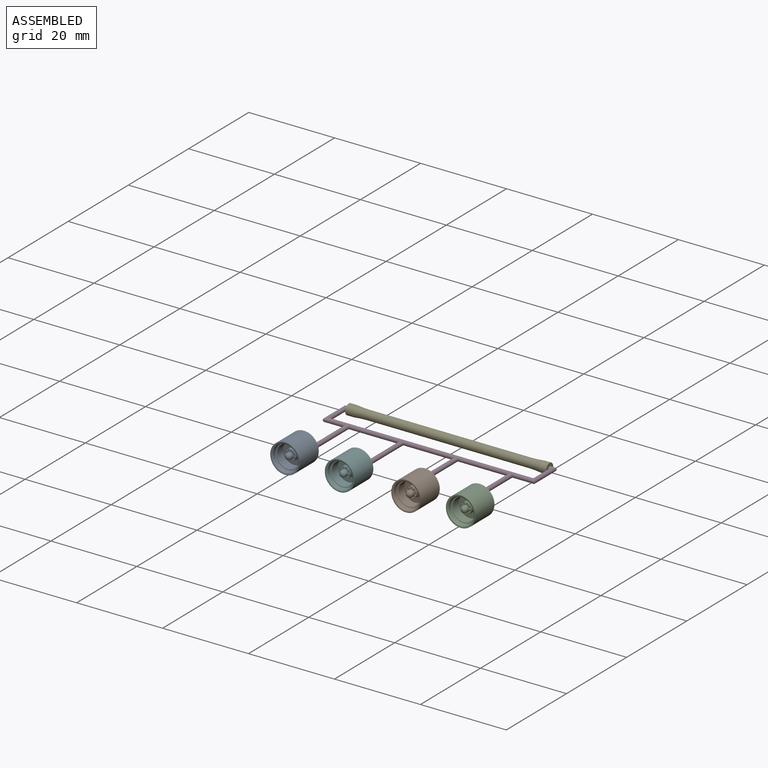
[diagram: assembled view]
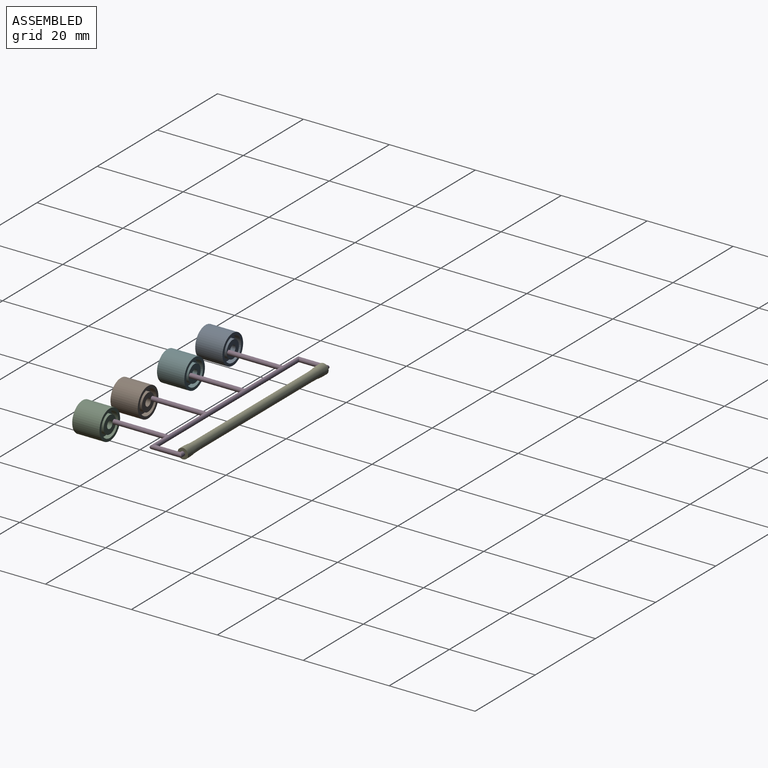
[diagram: assembled view, second angle]
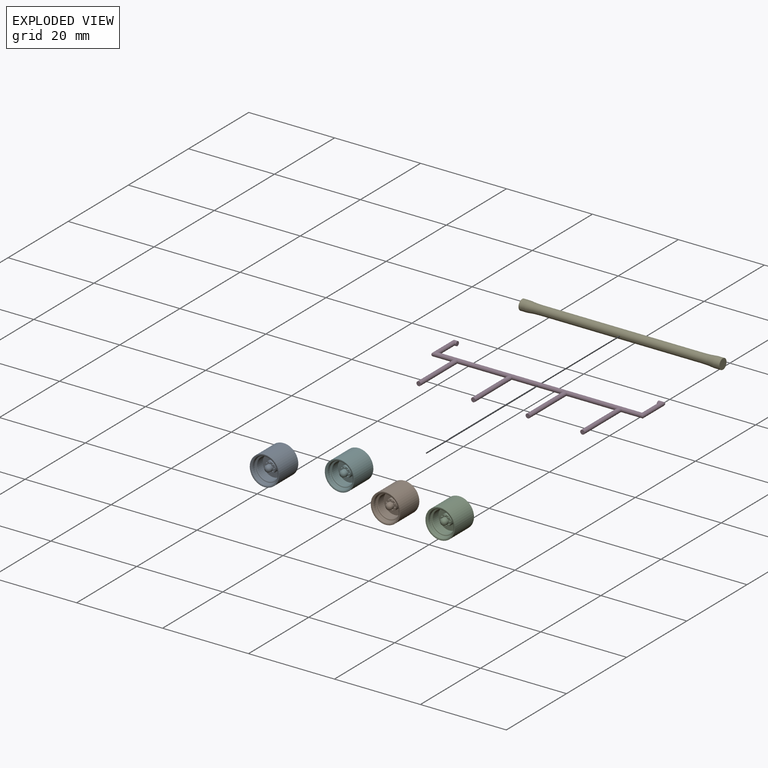
[diagram: exploded view]
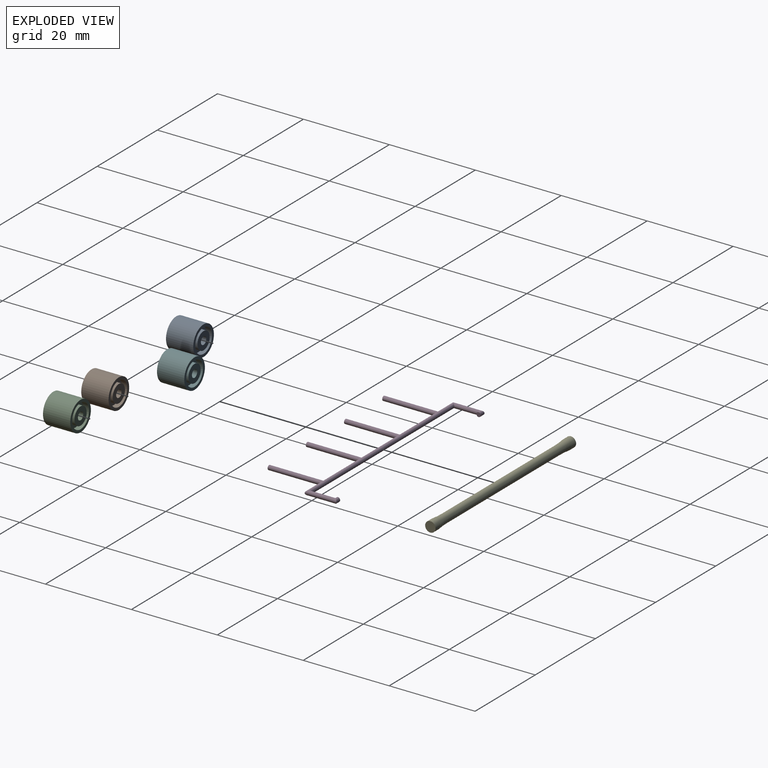
[diagram: exploded view, second angle]
ASSEMBLY  parts=6 mates=6
PART A: 75 faces, bbox 6.4x7.1x7.1 mm
  f0: cylinder r=3.43mm len=6.86mm, axis (-1,0,0), area 136.8mm2, adj f1,f2
  f1: plane 6.86x6.86mm, normal (1,0,0), area 2.7mm2, adj f0,f10
  f2: plane 6.86x6.86mm, normal (-1,0,0), area 12.4mm2, adj f0,f70
  f3: cylinder r=2.92mm len=5.84mm, axis (1,0,0), area 8.2mm2, adj f10,f67
  f4: cylinder r=2.54mm len=5.08mm, axis (1,0,0), area 29.4mm2, adj f5,f68
  f5: plane 5.08x5.08mm, normal (1,0,0), area 15.2mm2, adj f4,f6
  f6: cylinder r=1.27mm len=2.54mm, axis (-1,0,0), area 10.1mm2, adj f5,f7
  f7: plane 2.54x2.54mm, normal (1,0,0), area 2.5mm2, adj f6,f8,f11,f12,f13,f14,f15,f16
  f8: cylinder r=0.76mm len=1.52mm, axis (-1,0,0), area 2.4mm2, adj f7,f9
  f9: sphere r=0.76mm, area 3.6mm2, adj f8
  f10: torus R=3.3mm, axis (1,0,0), area 11.5mm2, adj f1,f3
  f11: plane 0.25x0.19mm, normal (0,0,-1), area 0mm2, adj f7,f12,f16,f17
  f12: plane 0.25x0.17mm, normal (0,0.87,-0.5), area 0mm2, adj f7,f11,f13,f17
  f13: plane 0.25x0.17mm, normal (0,0.87,0.5), area 0mm2, adj f7,f12,f14,f17
  f14: plane 0.25x0.19mm, normal (0,0,1), area 0mm2, adj f7,f13,f15,f17
  f15: plane 0.25x0.17mm, normal (0,-0.87,0.5), area 0mm2, adj f7,f14,f16,f17
  f16: plane 0.25x0.17mm, normal (0,-0.87,-0.5), area 0mm2, adj f7,f11,f15,f17
  f17: plane 0.38x0.33mm, normal (1,0,0), area 0.1mm2, adj f11,f12,f13,f14,f15,f16
  f18: plane 0.25x0.19mm, normal (0,0,1), area 0mm2, adj f7,f19,f23,f24
  f19: plane 0.25x0.17mm, normal (0,-0.87,0.5), area 0mm2, adj f7,f18,f20,f24
  f20: plane 0.25x0.17mm, normal (0,-0.87,-0.5), area 0mm2, adj f7,f19,f21,f24
  f21: plane 0.25x0.19mm, normal (0,0,-1), area 0mm2, adj f7,f20,f22,f24
  f22: plane 0.25x0.17mm, normal (0,0.87,-0.5), area 0mm2, adj f7,f21,f23,f24
  f23: plane 0.25x0.17mm, normal (0,0.87,0.5), area 0mm2, adj f7,f18,f22,f24
  f24: plane 0.38x0.33mm, normal (1,0,0), area 0.1mm2, adj f18,f19,f20,f21,f22,f23
  f25: plane 0.25x0.19mm, normal (0,0,1), area 0mm2, adj f7,f26,f30,f31
  f26: plane 0.25x0.17mm, normal (0,-0.87,0.5), area 0mm2, adj f7,f25,f27,f31
  f27: plane 0.25x0.17mm, normal (0,-0.87,-0.5), area 0mm2, adj f7,f26,f28,f31
  f28: plane 0.25x0.19mm, normal (0,0,-1), area 0mm2, adj f7,f27,f29,f31
  f29: plane 0.25x0.17mm, normal (0,0.87,-0.5), area 0mm2, adj f7,f28,f30,f31
  f30: plane 0.25x0.17mm, normal (0,0.87,0.5), area 0mm2, adj f7,f25,f29,f31
  f31: plane 0.38x0.33mm, normal (1,0,0), area 0.1mm2, adj f25,f26,f27,f28,f29,f30
  f32: plane 0.25x0.17mm, normal (0,0.87,0.5), area 0mm2, adj f7,f33,f37,f38
  f33: plane 0.25x0.19mm, normal (0,0,1), area 0mm2, adj f7,f32,f34,f38
  f34: plane 0.25x0.17mm, normal (0,-0.87,0.5), area 0mm2, adj f7,f33,f35,f38
  f35: plane 0.25x0.17mm, normal (0,-0.87,-0.5), area 0mm2, adj f7,f34,f36,f38
  f36: plane 0.25x0.19mm, normal (0,0,-1), area 0mm2, adj f7,f35,f37,f38
  f37: plane 0.25x0.17mm, normal (0,0.87,-0.5), area 0mm2, adj f7,f32,f36,f38
  f38: plane 0.38x0.33mm, normal (1,0,0), area 0.1mm2, adj f32,f33,f34,f35,f36,f37
  f39: plane 0.25x0.17mm, normal (0,0.87,-0.5), area 0mm2, adj f7,f40,f44,f45
  f40: plane 0.25x0.17mm, normal (0,0.87,0.5), area 0mm2, adj f7,f39,f41,f45
  f41: plane 0.25x0.19mm, normal (0,0,1), area 0mm2, adj f7,f40,f42,f45
  f42: plane 0.25x0.17mm, normal (0,-0.87,0.5), area 0mm2, adj f7,f41,f43,f45
  f43: plane 0.25x0.17mm, normal (0,-0.87,-0.5), area 0mm2, adj f7,f42,f44,f45
  f44: plane 0.25x0.19mm, normal (0,0,-1), area 0mm2, adj f7,f39,f43,f45
  f45: plane 0.38x0.33mm, normal (1,0,0), area 0.1mm2, adj f39,f40,f41,f42,f43,f44
  f46: plane 0.25x0.17mm, normal (0,0.87,0.5), area 0mm2, adj f7,f47,f51,f52
  f47: plane 0.25x0.19mm, normal (0,0,1), area 0mm2, adj f7,f46,f48,f52
  f48: plane 0.25x0.17mm, normal (0,-0.87,0.5), area 0mm2, adj f7,f47,f49,f52
  f49: plane 0.25x0.17mm, normal (0,-0.87,-0.5), area 0mm2, adj f7,f48,f50,f52
  f50: plane 0.25x0.19mm, normal (0,0,-1), area 0mm2, adj f7,f49,f51,f52
  f51: plane 0.25x0.17mm, normal (0,0.87,-0.5), area 0mm2, adj f7,f46,f50,f52
  f52: plane 0.38x0.33mm, normal (1,0,0), area 0.1mm2, adj f46,f47,f48,f49,f50,f51
  f53: plane 0.25x0.19mm, normal (0,0,-1), area 0mm2, adj f7,f54,f58,f59
  f54: plane 0.25x0.17mm, normal (0,0.87,-0.5), area 0mm2, adj f7,f53,f55,f59
  f55: plane 0.25x0.17mm, normal (0,0.87,0.5), area 0mm2, adj f7,f54,f56,f59
  f56: plane 0.25x0.19mm, normal (0,0,1), area 0mm2, adj f7,f55,f57,f59
  f57: plane 0.25x0.17mm, normal (0,-0.87,0.5), area 0mm2, adj f7,f56,f58,f59
  f58: plane 0.25x0.17mm, normal (0,-0.87,-0.5), area 0mm2, adj f7,f53,f57,f59
  f59: plane 0.38x0.33mm, normal (1,0,0), area 0.1mm2, adj f53,f54,f55,f56,f57,f58
  f60: plane 0.25x0.17mm, normal (0,-0.87,-0.5), area 0mm2, adj f7,f61,f65,f66
  f61: plane 0.25x0.19mm, normal (0,0,-1), area 0mm2, adj f7,f60,f62,f66
  f62: plane 0.25x0.17mm, normal (0,0.87,-0.5), area 0mm2, adj f7,f61,f63,f66
  f63: plane 0.25x0.17mm, normal (0,0.87,0.5), area 0mm2, adj f7,f62,f64,f66
  f64: plane 0.25x0.19mm, normal (0,0,1), area 0mm2, adj f7,f63,f65,f66
  f65: plane 0.25x0.17mm, normal (0,-0.87,0.5), area 0mm2, adj f7,f60,f64,f66
  f66: plane 0.38x0.33mm, normal (1,0,0), area 0.1mm2, adj f60,f61,f62,f63,f64,f65
  f67: torus R=2.73mm, axis (1,0,0), area 5.4mm2, adj f3,f68
  f68: torus R=2.73mm, axis (1,0,0), area 4.9mm2, adj f4,f67
  f69: cylinder r=2.03mm len=4.06mm, axis (-1,0,0), area 16.2mm2, adj f71,f74
  f70: cylinder r=2.79mm len=5.59mm, axis (-1,0,0), area 22.3mm2, adj f2,f71
  f71: plane 5.59x5.59mm, normal (-1,0,0), area 11.6mm2, adj f69,f70
  f72: plane 1.78x1.78mm, normal (-1,0,0), area 2.5mm2, adj f73
  f73: cylinder r=0.89mm len=2.54mm, axis (-1,0,0), area 14.2mm2, adj f72,f74
  f74: plane 4.06x4.06mm, normal (-1,0,0), area 10.5mm2, adj f69,f73
PART B: same geometry as A
PART C: same geometry as A
PART D: 15 faces, bbox 49.3x19.6x1 mm
  f0: cylinder r=0.51mm len=49.28mm, axis (1,0,0), area 150.8mm2, adj f3,f4,f5,f7,f11,f14
  f1: plane 1.02x1.02mm, normal (0,-1,0), area 0.8mm2, adj f3
  f2: plane 1.02x1.02mm, normal (0,-1,0), area 0.8mm2, adj f4
  f3: cylinder r=0.51mm len=12.7mm, axis (0,-1,0), area 39.7mm2, adj f0,f1
  f4: cylinder r=0.51mm len=12.7mm, axis (0,1,0), area 39.7mm2, adj f0,f2
  f5: cylinder r=0.51mm len=12.7mm, axis (0,1,0), area 39.7mm2, adj f0,f6
  f6: plane 1.02x1.02mm, normal (0,-1,0), area 0.8mm2, adj f5
  f7: cylinder r=0.51mm len=12.7mm, axis (0,1,0), area 39.7mm2, adj f0,f8
  f8: plane 1.02x1.02mm, normal (0,-1,0), area 0.8mm2, adj f7
  f9: plane 1.02x1.02mm, normal (-1,0,0), area 0.8mm2, adj f10
  f10: cylinder r=0.51mm len=1.27mm, axis (-1,0,0), area 2.4mm2, adj f9,f11
  f11: cylinder r=0.51mm len=7.37mm, axis (0,1,0), area 20.3mm2, adj f0,f10
  f12: plane 1.02x1.02mm, normal (1,0,0), area 0.8mm2, adj f13
  f13: cylinder r=0.51mm len=1.27mm, axis (1,0,0), area 2.4mm2, adj f12,f14
  f14: cylinder r=0.51mm len=7.37mm, axis (0,1,0), area 20.3mm2, adj f0,f13
PART E: 7 faces, bbox 18.1x73.5x18.1 mm
  f0: cylinder r=1.02mm len=37.48mm, axis (0,-1,0), area 239.2mm2, adj f5,f6
  f1: cylinder r=1.21mm len=2.41mm, axis (0,-1,0), area 11.6mm2, adj f2,f6
  f2: plane 2.41x2.41mm, normal (0,-1,0), area 4.6mm2, adj f1
  f3: cylinder r=1.21mm len=2.41mm, axis (0,1,0), area 11.6mm2, adj f4,f5
  f4: plane 2.41x2.41mm, normal (0,1,0), area 4.6mm2, adj f3
  f5: torus R=26.42mm, axis (0,1,0), area 21.1mm2, adj f0,f3
  f6: torus R=26.42mm, axis (0,-1,0), area 21.1mm2, adj f0,f1
PART F: same geometry as A
PLACE A rot(axis=(-0.58,0.58,-0.58),120deg) t=(-19.06,-5.75,0.1)mm
PLACE B rot(axis=(0.51,-0.51,-0.7),110.3deg) t=(9.1,-5.75,-0.28)mm
PLACE C rot(axis=(0.05,-0.05,-1),90.1deg) t=(21.82,-5.75,-0.13)mm
PLACE D t=(1.38,-5.75,-0.01)mm
PLACE E rot(axis=(0.58,0.58,-0.58),120deg) t=(-21.99,13.3,-24.44)mm
PLACE F rot(axis=(-0.58,0.58,-0.58),120deg) t=(-6.36,-5.75,-0.14)mm
MATE planar C.f0 <-> D.f3  axis (0,1,0) through (21.82,-5.75,-0.13)mm
MATE planar A.f0 <-> D.f4  axis (0,1,0) through (-19.06,-5.75,0.1)mm
MATE planar E.f0 <-> D.f10  axis (-1,0,0) through (-21.99,13.3,-0.01)mm
MATE planar B.f0 <-> D.f7  axis (0,1,0) through (9.1,-5.75,-0.28)mm
MATE planar F.f0 <-> D.f5  axis (0,1,0) through (-6.36,-5.75,-0.14)mm
MATE cylindrical E.f0 <-> D.f10  axis (-1,0,0) through (-21.99,13.3,-0.01)mm
